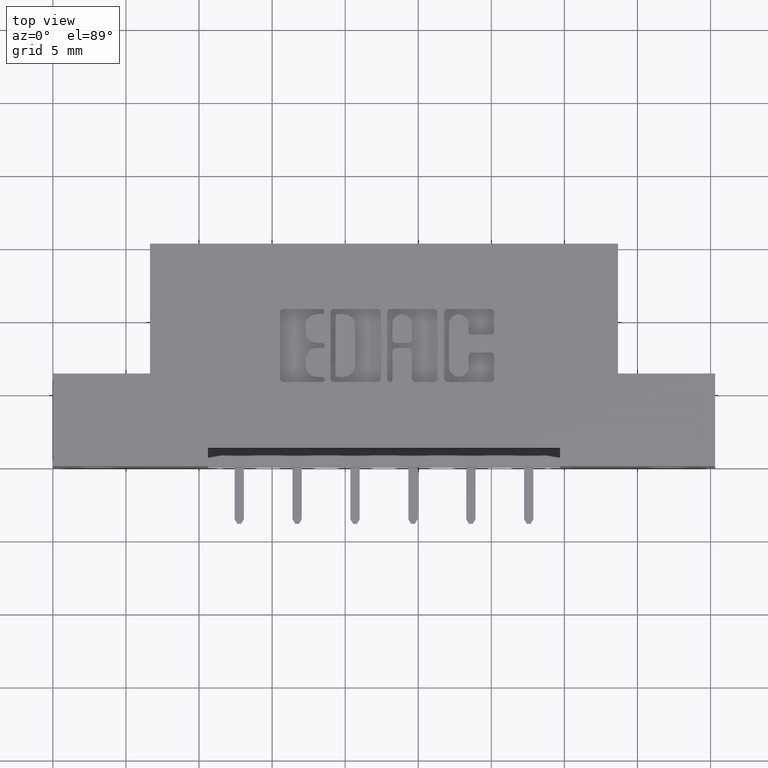
[diagram: clean part render]
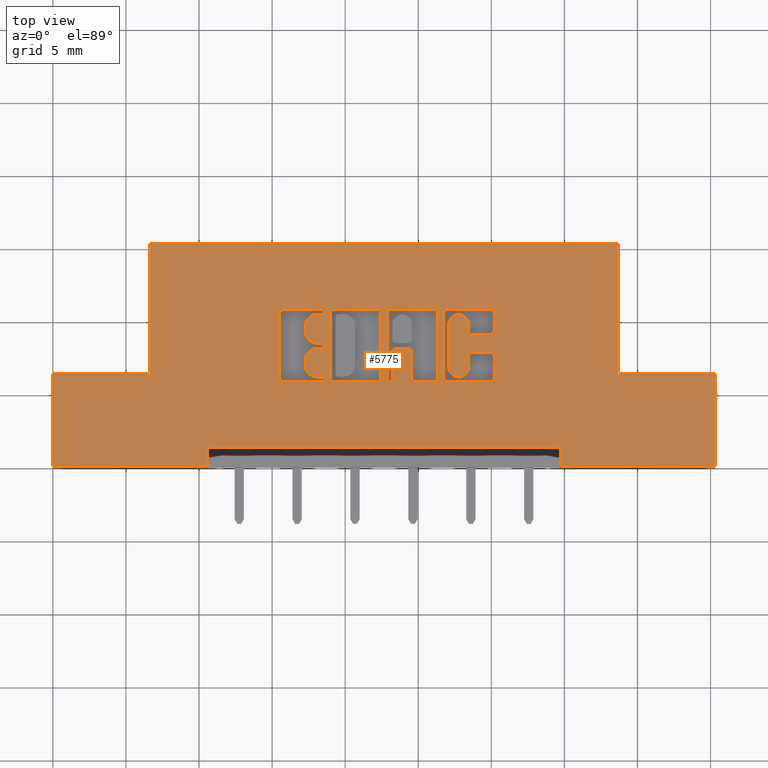
[diagram: same view with one face highlighted and labeled with its STEP entity id]
A machine part, top view. The second image highlights one B-rep face of the part: STEP entity #5775.
In plain terms, the highlighted planar face has unit normal (0, 0, -1).
Its self-contained STEP definition (entity closure, byte-faithful):
#20 = VERTEX_POINT ( 'NONE', #6857 ) ;
#29 = VERTEX_POINT ( 'NONE', #3687 ) ;
#33 = EDGE_CURVE ( 'NONE', #1193, #3816, #1734, .T. ) ;
#35 = CARTESIAN_POINT ( 'NONE',  ( 1.178862961706153234, 0.2965345564089701957, 0.0000000000000000000 ) ) ;
#37 = VERTEX_POINT ( 'NONE', #6255 ) ;
#97 = CIRCLE ( 'NONE', #4847, 0.006870969142662229460 ) ;
#115 = CARTESIAN_POINT ( 'NONE',  ( 1.119478156973165994, 0.3637718973050449445, 0.0000000000000000000 ) ) ;
#119 = AXIS2_PLACEMENT_3D ( 'NONE', #5391, #4222, #899 ) ;
#134 = LINE ( 'NONE', #7302, #653 ) ;
#159 = EDGE_CURVE ( 'NONE', #682, #5470, #1967, .T. ) ;
#162 = VERTEX_POINT ( 'NONE', #3243 ) ;
#163 = CARTESIAN_POINT ( 'NONE',  ( 1.119478156973165994, 0.0000000000000000000, 0.0000000000000000000 ) ) ;
#206 = CARTESIAN_POINT ( 'NONE',  ( 1.129293827176967246, 0.2965345564089693076, 0.0000000000000000000 ) ) ;
#233 = ORIENTED_EDGE ( 'NONE', *, *, #6358, .F. ) ;
#246 = CIRCLE ( 'NONE', #3498, 0.006870969142657995000 ) ;
#265 = CARTESIAN_POINT ( 'NONE',  ( 0.7320045756779998136, 0.4162857328953860070, 0.0000000000000000000 ) ) ;
#281 = DIRECTION ( 'NONE',  ( 0.0000000000000000000, 1.000000000000000000, -0.0000000000000000000 ) ) ;
#288 = EDGE_CURVE ( 'NONE', #7835, #6726, #6532, .T. ) ;
#339 = LINE ( 'NONE', #8043, #3324 ) ;
#350 = CARTESIAN_POINT ( 'NONE',  ( 1.188678631909940275, 0.2366589681657827182, 0.0000000000000000000 ) ) ;
#363 = LINE ( 'NONE', #406, #8225 ) ;
#374 = VERTEX_POINT ( 'NONE', #4659 ) ;
#375 = ORIENTED_EDGE ( 'NONE', *, *, #1810, .F. ) ;
#404 = EDGE_CURVE ( 'NONE', #6148, #6944, #4616, .T. ) ;
#406 = CARTESIAN_POINT ( 'NONE',  ( -2.860952991549581889E-14, 0.2405852362472237216, 0.0000000000000000000 ) ) ;
#410 = EDGE_CURVE ( 'NONE', #4275, #5692, #5449, .T. ) ;
#424 = CARTESIAN_POINT ( 'NONE',  ( 1.036044960240806834, 0.2366589681657806088, 0.0000000000000000000 ) ) ;
#460 = DIRECTION ( 'NONE',  ( 0.0000000000000000000, 0.0000000000000000000, -1.000000000000000000 ) ) ;
#468 = CARTESIAN_POINT ( 'NONE',  ( 1.178862961706168555, 0.4231567020380507804, 0.0000000000000000000 ) ) ;
#494 = CARTESIAN_POINT ( 'NONE',  ( 1.784000000000000474, 0.0000000000000000000, 0.0000000000000000000 ) ) ;
#504 = DIRECTION ( 'NONE',  ( -1.000000000000000000, 0.0000000000000000000, 0.0000000000000000000 ) ) ;
#511 = AXIS2_PLACEMENT_3D ( 'NONE', #7836, #2041, #5970 ) ;
#512 = ORIENTED_EDGE ( 'NONE', *, *, #2056, .F. ) ;
#541 = ORIENTED_EDGE ( 'NONE', *, *, #5886, .T. ) ;
#550 = ORIENTED_EDGE ( 'NONE', *, *, #7308, .F. ) ;
#556 = VERTEX_POINT ( 'NONE', #7456 ) ;
#557 = LINE ( 'NONE', #1751, #7769 ) ;
#562 = EDGE_CURVE ( 'NONE', #7600, #20, #2925, .T. ) ;
#573 = DIRECTION ( 'NONE',  ( 1.000000000000000000, 0.0000000000000000000, 0.0000000000000000000 ) ) ;
#598 = VERTEX_POINT ( 'NONE', #5150 ) ;
#636 = AXIS2_PLACEMENT_3D ( 'NONE', #35, #1399, #3979 ) ;
#639 = CARTESIAN_POINT ( 'NONE',  ( 1.093221239177992299, 0.3831578459575293305, 0.0000000000000000000 ) ) ;
#649 = DIRECTION ( 'NONE',  ( 1.000000000000000000, 0.0000000000000000000, 0.0000000000000000000 ) ) ;
#650 = ORIENTED_EDGE ( 'NONE', *, *, #1180, .F. ) ;
#653 = VECTOR ( 'NONE', #5974, 39.37007874015748143 ) ;
#656 = DIRECTION ( 'NONE',  ( 1.000000000000000000, 0.0000000000000000000, 0.0000000000000000000 ) ) ;
#682 = VERTEX_POINT ( 'NONE', #8350 ) ;
#683 = CARTESIAN_POINT ( 'NONE',  ( 1.119478156973179095, 0.0000000000000000000, 0.0000000000000000000 ) ) ;
#689 = VERTEX_POINT ( 'NONE', #4509 ) ;
#694 = CARTESIAN_POINT ( 'NONE',  ( 0.7479550397591693267, 0.0000000000000000000, 0.0000000000000000000 ) ) ;
#700 = ORIENTED_EDGE ( 'NONE', *, *, #6250, .F. ) ;
#744 = EDGE_CURVE ( 'NONE', #689, #8251, #2866, .T. ) ;
#745 = CARTESIAN_POINT ( 'NONE',  ( -0.0000000000000000000, 0.3539562271012333672, 0.0000000000000000000 ) ) ;
#753 = DIRECTION ( 'NONE',  ( -0.0000000000000000000, -1.000000000000000000, -0.0000000000000000000 ) ) ;
#840 = DIRECTION ( 'NONE',  ( -0.0000000000000000000, 0.0000000000000000000, 1.000000000000000000 ) ) ;
#881 = CARTESIAN_POINT ( 'NONE',  ( 1.119478156973179095, 0.2965345564089684194, 0.0000000000000000000 ) ) ;
#883 = CARTESIAN_POINT ( 'NONE',  ( 0.7577707099630103249, 0.4231567020380507804, 0.0000000000000000000 ) ) ;
#889 = ORIENTED_EDGE ( 'NONE', *, *, #6785, .F. ) ;
#899 = DIRECTION ( 'NONE',  ( 1.000000000000000000, 0.0000000000000000000, 0.0000000000000000000 ) ) ;
#902 = CIRCLE ( 'NONE', #5103, 0.03141014465215623969 ) ;
#912 = DIRECTION ( 'NONE',  ( -0.0000000000000000000, 0.0000000000000000000, 1.000000000000000000 ) ) ;
#915 = CIRCLE ( 'NONE', #6735, 0.009815670203796511215 ) ;
#922 = LINE ( 'NONE', #745, #3111 ) ;
#923 = ORIENTED_EDGE ( 'NONE', *, *, #4706, .T. ) ;
#928 = VERTEX_POINT ( 'NONE', #7593 ) ;
#930 = EDGE_CURVE ( 'NONE', #928, #3530, #8112, .T. ) ;
#941 = VERTEX_POINT ( 'NONE', #5025 ) ;
#950 = AXIS2_PLACEMENT_3D ( 'NONE', #4778, #2706, #7860 ) ;
#984 = EDGE_CURVE ( 'NONE', #3012, #1217, #6281, .T. ) ;
#990 = CARTESIAN_POINT ( 'NONE',  ( 1.063038053301299524, 0.4133410318342098377, 0.0000000000000000000 ) ) ;
#1000 = AXIS2_PLACEMENT_3D ( 'NONE', #206, #840, #8085 ) ;
#1028 = CARTESIAN_POINT ( 'NONE',  ( 1.784000000000000474, 0.2500000000000000000, 0.0000000000000000000 ) ) ;
#1043 = VECTOR ( 'NONE', #4056, 39.37007874015748143 ) ;
#1045 = VERTEX_POINT ( 'NONE', #6533 ) ;
#1054 = VECTOR ( 'NONE', #6858, 39.37007874015748143 ) ;
#1057 = CIRCLE ( 'NONE', #511, 0.006870969142648433205 ) ;
#1058 = CARTESIAN_POINT ( 'NONE',  ( 0.8735956183678962317, 0.4231567020380507804, 0.0000000000000000000 ) ) ;
#1060 = DIRECTION ( 'NONE',  ( -1.000000000000000000, -3.530861605407645268E-14, 0.0000000000000000000 ) ) ;
#1085 = ORIENTED_EDGE ( 'NONE', *, *, #5941, .F. ) ;
#1089 = CARTESIAN_POINT ( 'NONE',  ( -0.0000000000000000000, 0.2268432979619829370, 0.0000000000000000000 ) ) ;
#1090 = VECTOR ( 'NONE', #7393, 39.37007874015748143 ) ;
#1167 = CARTESIAN_POINT ( 'NONE',  ( 1.129293827176977461, 0.3637718973050449445, 0.0000000000000000000 ) ) ;
#1169 = CARTESIAN_POINT ( 'NONE',  ( 0.0000000000000000000, 0.5999999999999999778, 0.0000000000000000000 ) ) ;
#1180 = EDGE_CURVE ( 'NONE', #556, #6256, #3489, .T. ) ;
#1185 = ORIENTED_EDGE ( 'NONE', *, *, #5076, .F. ) ;
#1189 = EDGE_CURVE ( 'NONE', #4565, #7220, #4282, .T. ) ;
#1193 = VERTEX_POINT ( 'NONE', #4717 ) ;
#1201 = CARTESIAN_POINT ( 'NONE',  ( 1.366500000000000936, 0.0000000000000000000, 0.0000000000000000000 ) ) ;
#1202 = ORIENTED_EDGE ( 'NONE', *, *, #5634, .F. ) ;
#1217 = VERTEX_POINT ( 'NONE', #2257 ) ;
#1218 = CARTESIAN_POINT ( 'NONE',  ( 0.7116370600050841988, 0.3632811137948581126, 0.0000000000000000000 ) ) ;
#1225 = ORIENTED_EDGE ( 'NONE', *, *, #3038, .F. ) ;
#1233 = VECTOR ( 'NONE', #6820, 39.37007874015748143 ) ;
#1254 = DIRECTION ( 'NONE',  ( -0.0000000000000000000, 0.0000000000000000000, 1.000000000000000000 ) ) ;
#1258 = CARTESIAN_POINT ( 'NONE',  ( 1.053222383097458748, 0.2366589681657896849, 0.0000000000000000000 ) ) ;
#1266 = EDGE_CURVE ( 'NONE', #7711, #941, #6387, .T. ) ;
#1267 = CARTESIAN_POINT ( 'NONE',  ( 0.7116370600050841988, 0.3318709691426836028, 0.0000000000000000000 ) ) ;
#1268 = DIRECTION ( 'NONE',  ( -0.0000000000000000000, 0.0000000000000000000, 1.000000000000000000 ) ) ;
#1269 = ORIENTED_EDGE ( 'NONE', *, *, #562, .F. ) ;
#1280 = EDGE_CURVE ( 'NONE', #5428, #928, #2746, .T. ) ;
#1294 = EDGE_CURVE ( 'NONE', #3619, #5426, #5688, .T. ) ;
#1319 = DIRECTION ( 'NONE',  ( -0.0000000000000000000, 0.0000000000000000000, 1.000000000000000000 ) ) ;
#1339 = ORIENTED_EDGE ( 'NONE', *, *, #8317, .F. ) ;
#1343 = CARTESIAN_POINT ( 'NONE',  ( 1.188678631909972250, 0.0000000000000000000, 0.0000000000000000000 ) ) ;
#1369 = CARTESIAN_POINT ( 'NONE',  ( 1.188678631909940275, 0.2965345564089701957, 0.0000000000000000000 ) ) ;
#1385 = CARTESIAN_POINT ( 'NONE',  ( 0.6208421106199187856, 0.2268432979619847134, 0.0000000000000000000 ) ) ;
#1399 = DIRECTION ( 'NONE',  ( -0.0000000000000000000, 0.0000000000000000000, 1.000000000000000000 ) ) ;
#1408 = ORIENTED_EDGE ( 'NONE', *, *, #1189, .F. ) ;
#1428 = DIRECTION ( 'NONE',  ( -1.000000000000000000, -1.189163988687022540E-13, 0.0000000000000000000 ) ) ;
#1452 = ORIENTED_EDGE ( 'NONE', *, *, #6409, .T. ) ;
#1459 = DIRECTION ( 'NONE',  ( -1.000000000000000000, -0.0000000000000000000, -0.0000000000000000000 ) ) ;
#1482 = DIRECTION ( 'NONE',  ( -0.0000000000000000000, 0.0000000000000000000, 1.000000000000000000 ) ) ;
#1491 = DIRECTION ( 'NONE',  ( 1.000000000000000000, 0.0000000000000000000, 0.0000000000000000000 ) ) ;
#1499 = DIRECTION ( 'NONE',  ( 0.0000000000000000000, -1.000000000000000000, 0.0000000000000000000 ) ) ;
#1507 = VERTEX_POINT ( 'NONE', #8297 ) ;
#1511 = ORIENTED_EDGE ( 'NONE', *, *, #5691, .F. ) ;
#1559 = DIRECTION ( 'NONE',  ( -0.0000000000000000000, 0.0000000000000000000, 1.000000000000000000 ) ) ;
#1577 = CIRCLE ( 'NONE', #6706, 0.03141014465221592805 ) ;
#1586 = CARTESIAN_POINT ( 'NONE',  ( 0.4174999999999999822, 0.05000000000000000278, 0.0000000000000000000 ) ) ;
#1589 = CIRCLE ( 'NONE', #7115, 0.009815670203840083999 ) ;
#1617 = CARTESIAN_POINT ( 'NONE',  ( 0.8834112885716690622, 0.4133410318342098377, 0.0000000000000000000 ) ) ;
#1624 = LINE ( 'NONE', #4125, #3349 ) ;
#1647 = CARTESIAN_POINT ( 'NONE',  ( 0.0000000000000000000, 0.5999999999999999778, 0.0000000000000000000 ) ) ;
#1652 = EDGE_CURVE ( 'NONE', #1045, #6148, #3396, .T. ) ;
#1657 = DIRECTION ( 'NONE',  ( 1.000000000000000000, 0.0000000000000000000, 0.0000000000000000000 ) ) ;
#1675 = EDGE_CURVE ( 'NONE', #3654, #5931, #5340, .T. ) ;
#1702 = CARTESIAN_POINT ( 'NONE',  ( 0.7251336064154144667, 0.2268432979619854628, 0.0000000000000000000 ) ) ;
#1709 = DIRECTION ( 'NONE',  ( 1.000000000000000000, -0.0000000000000000000, 6.517790373664756167E-16 ) ) ;
#1715 = EDGE_CURVE ( 'NONE', #1986, #29, #6950, .T. ) ;
#1719 = VERTEX_POINT ( 'NONE', #2413 ) ;
#1730 = DIRECTION ( 'NONE',  ( -0.0000000000000000000, 1.000000000000000000, -0.0000000000000000000 ) ) ;
#1734 = LINE ( 'NONE', #4324, #4890 ) ;
#1751 = CARTESIAN_POINT ( 'NONE',  ( -1.634053534412015180E-15, 0.2268432979619802448, 0.0000000000000000000 ) ) ;
#1770 = ORIENTED_EDGE ( 'NONE', *, *, #5392, .T. ) ;
#1775 = CARTESIAN_POINT ( 'NONE',  ( 0.7251336064154144667, 0.2405852362473099582, 0.0000000000000000000 ) ) ;
#1779 = VERTEX_POINT ( 'NONE', #468 ) ;
#1784 = ORIENTED_EDGE ( 'NONE', *, *, #3190, .F. ) ;
#1805 = LINE ( 'NONE', #1169, #6451 ) ;
#1810 = EDGE_CURVE ( 'NONE', #6726, #4565, #7099, .T. ) ;
#1829 = ORIENTED_EDGE ( 'NONE', *, *, #7215, .F. ) ;
#1837 = CIRCLE ( 'NONE', #4140, 0.009815670203806754757 ) ;
#1845 = CIRCLE ( 'NONE', #6851, 0.02625691779517367111 ) ;
#1853 = EDGE_CURVE ( 'NONE', #598, #7265, #6091, .T. ) ;
#1866 = CARTESIAN_POINT ( 'NONE',  ( 0.7577707099630103249, 0.4133410318342098377, 0.0000000000000000000 ) ) ;
#1867 = VERTEX_POINT ( 'NONE', #6464 ) ;
#1891 = CARTESIAN_POINT ( 'NONE',  ( 0.6802269153529095780, 0.3780046191005195233, 0.0000000000000000000 ) ) ;
#1898 = ORIENTED_EDGE ( 'NONE', *, *, #930, .F. ) ;
#1899 = ORIENTED_EDGE ( 'NONE', *, *, #2258, .F. ) ;
#1963 = CARTESIAN_POINT ( 'NONE',  ( 0.7251336064153889316, 0.3181290308573565540, 0.0000000000000000000 ) ) ;
#1967 = LINE ( 'NONE', #1343, #5070 ) ;
#1968 = DIRECTION ( 'NONE',  ( 1.000000000000000000, 0.0000000000000000000, 0.0000000000000000000 ) ) ;
#1971 = DIRECTION ( 'NONE',  ( 0.0000000000000000000, -1.000000000000000000, 0.0000000000000000000 ) ) ;
#1977 = ORIENTED_EDGE ( 'NONE', *, *, #404, .T. ) ;
#1986 = VERTEX_POINT ( 'NONE', #7319 ) ;
#1998 = DIRECTION ( 'NONE',  ( -0.0000000000000000000, -1.000000000000000000, -0.0000000000000000000 ) ) ;
#2030 = VERTEX_POINT ( 'NONE', #7816 ) ;
#2031 = CARTESIAN_POINT ( 'NONE',  ( 0.6110264404161155349, 0.4133410318342098377, 0.0000000000000000000 ) ) ;
#2041 = DIRECTION ( 'NONE',  ( -0.0000000000000000000, 0.0000000000000000000, 1.000000000000000000 ) ) ;
#2055 = VERTEX_POINT ( 'NONE', #4776 ) ;
#2056 = EDGE_CURVE ( 'NONE', #5977, #1507, #3931, .T. ) ;
#2075 = CARTESIAN_POINT ( 'NONE',  ( 0.7251336065353356508, 0.2337142671046476827, 0.0000000000000000000 ) ) ;
#2088 = EDGE_CURVE ( 'NONE', #20, #7834, #2720, .T. ) ;
#2091 = DIRECTION ( 'NONE',  ( 0.0000000000000000000, 1.000000000000000000, -0.0000000000000000000 ) ) ;
#2100 = VECTOR ( 'NONE', #7746, 39.37007874015748143 ) ;
#2120 = VERTEX_POINT ( 'NONE', #4146 ) ;
#2123 = CARTESIAN_POINT ( 'NONE',  ( 0.7251336065353356508, 0.2337142671046476827, 0.0000000000000000000 ) ) ;
#2145 = DIRECTION ( 'NONE',  ( 1.000000000000000000, 0.0000000000000000000, 0.0000000000000000000 ) ) ;
#2148 = AXIS2_PLACEMENT_3D ( 'NONE', #7045, #3863, #4716 ) ;
#2155 = VERTEX_POINT ( 'NONE', #5619 ) ;
#2169 = EDGE_LOOP ( 'NONE', ( #2353, #7696, #2690, #6168, #6656, #4838, #2988, #2454, #4044, #6292, #4777, #6066, #4411, #1269, #7273, #1898, #4482, #2239, #5939, #5382 ) ) ;
#2197 = EDGE_CURVE ( 'NONE', #2030, #6349, #6194, .T. ) ;
#2212 = VERTEX_POINT ( 'NONE', #4866 ) ;
#2223 = AXIS2_PLACEMENT_3D ( 'NONE', #1866, #1268, #6230 ) ;
#2230 = VERTEX_POINT ( 'NONE', #5033 ) ;
#2239 = ORIENTED_EDGE ( 'NONE', *, *, #2851, .F. ) ;
#2247 = VERTEX_POINT ( 'NONE', #494 ) ;
#2257 = CARTESIAN_POINT ( 'NONE',  ( 0.8735956183678622589, 0.2268432979619829370, 0.0000000000000000000 ) ) ;
#2258 = EDGE_CURVE ( 'NONE', #2030, #2230, #5665, .T. ) ;
#2283 = LINE ( 'NONE', #4239, #6459 ) ;
#2328 = DIRECTION ( 'NONE',  ( 0.0000000000000000000, 1.000000000000000000, -0.0000000000000000000 ) ) ;
#2338 = LINE ( 'NONE', #6828, #7651 ) ;
#2339 = ORIENTED_EDGE ( 'NONE', *, *, #4926, .T. ) ;
#2345 = AXIS2_PLACEMENT_3D ( 'NONE', #4380, #6960, #5016 ) ;
#2353 = ORIENTED_EDGE ( 'NONE', *, *, #4330, .F. ) ;
#2361 = FACE_BOUND ( 'NONE', #6939, .T. ) ;
#2381 = CARTESIAN_POINT ( 'NONE',  ( 1.784000000000000474, 0.2500000000000000000, 0.0000000000000000000 ) ) ;
#2394 = VECTOR ( 'NONE', #4262, 39.37007874015748143 ) ;
#2413 = CARTESIAN_POINT ( 'NONE',  ( 1.522500000000001075, 0.5999999999999999778, -1.704402182713329582E-16 ) ) ;
#2429 = AXIS2_PLACEMENT_3D ( 'NONE', #4099, #2698, #8030 ) ;
#2454 = ORIENTED_EDGE ( 'NONE', *, *, #7634, .F. ) ;
#2524 = AXIS2_PLACEMENT_3D ( 'NONE', #1167, #7678, #649 ) ;
#2526 = DIRECTION ( 'NONE',  ( -0.0000000000000000000, -1.000000000000000000, -0.0000000000000000000 ) ) ;
#2579 = EDGE_CURVE ( 'NONE', #1867, #7152, #1845, .T. ) ;
#2583 = CARTESIAN_POINT ( 'NONE',  ( 0.0000000000000000000, 0.2500000000000000000, 0.0000000000000000000 ) ) ;
#2614 = CARTESIAN_POINT ( 'NONE',  ( 1.188678631909972250, 0.4133410318341945722, 0.0000000000000000000 ) ) ;
#2632 = DIRECTION ( 'NONE',  ( -0.0000000000000000000, 0.0000000000000000000, 1.000000000000000000 ) ) ;
#2659 = CIRCLE ( 'NONE', #3753, 0.009815670203841039831 ) ;
#2690 = ORIENTED_EDGE ( 'NONE', *, *, #5059, .F. ) ;
#2694 = VECTOR ( 'NONE', #1060, 39.37007874015748143 ) ;
#2698 = DIRECTION ( 'NONE',  ( -0.0000000000000000000, 0.0000000000000000000, 1.000000000000000000 ) ) ;
#2701 = CARTESIAN_POINT ( 'NONE',  ( 0.0000000000000000000, 0.5999999999999999778, 0.0000000000000000000 ) ) ;
#2706 = DIRECTION ( 'NONE',  ( -0.0000000000000000000, 0.0000000000000000000, 1.000000000000000000 ) ) ;
#2709 = ORIENTED_EDGE ( 'NONE', *, *, #4770, .F. ) ;
#2713 = DIRECTION ( 'NONE',  ( -0.0000000000000000000, 0.0000000000000000000, 1.000000000000000000 ) ) ;
#2716 = CARTESIAN_POINT ( 'NONE',  ( 0.6802269153529095780, 0.0000000000000000000, 0.0000000000000000000 ) ) ;
#2720 = CIRCLE ( 'NONE', #7458, 0.009815670203806345362 ) ;
#2746 = CIRCLE ( 'NONE', #7733, 0.009815670203840767480 ) ;
#2759 = DIRECTION ( 'NONE',  ( 1.000000000000000000, 0.0000000000000000000, 0.0000000000000000000 ) ) ;
#2810 = CARTESIAN_POINT ( 'NONE',  ( 0.9668444853039848130, 0.0000000000000000000, 0.0000000000000000000 ) ) ;
#2845 = CARTESIAN_POINT ( 'NONE',  ( 0.9241463199174503318, 0.3083133606535453097, 0.0000000000000000000 ) ) ;
#2851 = EDGE_CURVE ( 'NONE', #1779, #5428, #2338, .T. ) ;
#2866 = LINE ( 'NONE', #4137, #1090 ) ;
#2896 = VECTOR ( 'NONE', #753, 39.37007874015748143 ) ;
#2914 = DIRECTION ( 'NONE',  ( -0.0000000000000000000, 0.0000000000000000000, 1.000000000000000000 ) ) ;
#2925 = LINE ( 'NONE', #6177, #5357 ) ;
#2944 = VERTEX_POINT ( 'NONE', #5469 ) ;
#2952 = CARTESIAN_POINT ( 'NONE',  ( 1.178862961706132140, 0.4133410318342106704, 0.0000000000000000000 ) ) ;
#2961 = DIRECTION ( 'NONE',  ( -0.0000000000000000000, 0.0000000000000000000, 1.000000000000000000 ) ) ;
#2988 = ORIENTED_EDGE ( 'NONE', *, *, #1266, .T. ) ;
#3005 = CARTESIAN_POINT ( 'NONE',  ( 0.4174999999999999822, 0.05000000000000000278, 0.0000000000000000000 ) ) ;
#3012 = VERTEX_POINT ( 'NONE', #3698 ) ;
#3038 = EDGE_CURVE ( 'NONE', #8137, #8239, #7620, .T. ) ;
#3052 = ORIENTED_EDGE ( 'NONE', *, *, #984, .F. ) ;
#3067 = DIRECTION ( 'NONE',  ( -0.0000000000000000000, 0.0000000000000000000, 1.000000000000000000 ) ) ;
#3071 = VECTOR ( 'NONE', #6970, 39.37007874015748143 ) ;
#3072 = VERTEX_POINT ( 'NONE', #5637 ) ;
#3074 = CARTESIAN_POINT ( 'NONE',  ( 0.0000000000000000000, 0.2500000000000000000, 0.0000000000000000000 ) ) ;
#3086 = VERTEX_POINT ( 'NONE', #6956 ) ;
#3096 = ORIENTED_EDGE ( 'NONE', *, *, #7697, .F. ) ;
#3106 = CIRCLE ( 'NONE', #2148, 0.006870969142663458512 ) ;
#3111 = VECTOR ( 'NONE', #6081, 39.37007874015748143 ) ;
#3131 = VERTEX_POINT ( 'NONE', #2583 ) ;
#3132 = ORIENTED_EDGE ( 'NONE', *, *, #6354, .F. ) ;
#3138 = DIRECTION ( 'NONE',  ( 1.000000000000000000, 7.203446383881654569E-15, 0.0000000000000000000 ) ) ;
#3167 = CARTESIAN_POINT ( 'NONE',  ( 0.9074596805709871372, 0.2337142671046476827, 0.0000000000000000000 ) ) ;
#3180 = VERTEX_POINT ( 'NONE', #3852 ) ;
#3190 = EDGE_CURVE ( 'NONE', #5426, #2247, #5335, .T. ) ;
#3243 = CARTESIAN_POINT ( 'NONE',  ( 1.036044960240806834, 0.4133410318342007339, 0.0000000000000000000 ) ) ;
#3244 = CARTESIAN_POINT ( 'NONE',  ( 1.066964321382818603, 0.3831578459575293305, 0.0000000000000000000 ) ) ;
#3281 = AXIS2_PLACEMENT_3D ( 'NONE', #3389, #6689, #1491 ) ;
#3307 = EDGE_CURVE ( 'NONE', #3816, #6867, #5322, .T. ) ;
#3324 = VECTOR ( 'NONE', #2328, 39.37007874015748143 ) ;
#3349 = VECTOR ( 'NONE', #6827, 39.37007874015748143 ) ;
#3353 = CIRCLE ( 'NONE', #2429, 0.009815670203795690690 ) ;
#3360 = CARTESIAN_POINT ( 'NONE',  ( 1.063038053301265329, 0.2268432979619829370, 0.0000000000000000000 ) ) ;
#3361 = CARTESIAN_POINT ( 'NONE',  ( 1.366500000000000936, 0.05000000000000000278, 0.0000000000000000000 ) ) ;
#3382 = CARTESIAN_POINT ( 'NONE',  ( 0.7116370600050841988, 0.3181290308573565540, 0.0000000000000000000 ) ) ;
#3389 = CARTESIAN_POINT ( 'NONE',  ( 0.6208421106199381034, 0.4133410318342098377, 0.0000000000000000000 ) ) ;
#3396 = CIRCLE ( 'NONE', #5427, 0.009815670203803203778 ) ;
#3406 = EDGE_CURVE ( 'NONE', #3086, #1507, #5675, .T. ) ;
#3425 = VECTOR ( 'NONE', #1709, 39.37007874015748143 ) ;
#3468 = ORIENTED_EDGE ( 'NONE', *, *, #6286, .F. ) ;
#3484 = VERTEX_POINT ( 'NONE', #424 ) ;
#3489 = LINE ( 'NONE', #7255, #5752 ) ;
#3498 = AXIS2_PLACEMENT_3D ( 'NONE', #3167, #7760, #1968 ) ;
#3502 = DIRECTION ( 'NONE',  ( 1.000000000000000000, 0.0000000000000000000, 0.0000000000000000000 ) ) ;
#3513 = CARTESIAN_POINT ( 'NONE',  ( 0.7320045756779978152, 0.2337142671046476827, 0.0000000000000000000 ) ) ;
#3530 = VERTEX_POINT ( 'NONE', #1258 ) ;
#3546 = LINE ( 'NONE', #3677, #7531 ) ;
#3550 = CARTESIAN_POINT ( 'NONE',  ( 1.178862961706134360, 0.2366589681657896849, 0.0000000000000000000 ) ) ;
#3556 = ORIENTED_EDGE ( 'NONE', *, *, #4019, .T. ) ;
#3582 = LINE ( 'NONE', #6149, #2394 ) ;
#3619 = VERTEX_POINT ( 'NONE', #5952 ) ;
#3630 = VERTEX_POINT ( 'NONE', #7188 ) ;
#3649 = LINE ( 'NONE', #2810, #5932 ) ;
#3654 = VERTEX_POINT ( 'NONE', #4644 ) ;
#3662 = CARTESIAN_POINT ( 'NONE',  ( 0.9005887114283310790, 0.4133410318342098377, 0.0000000000000000000 ) ) ;
#3669 = LINE ( 'NONE', #4937, #4972 ) ;
#3674 = DIRECTION ( 'NONE',  ( -0.0000000000000000000, 0.0000000000000000000, 1.000000000000000000 ) ) ;
#3677 = CARTESIAN_POINT ( 'NONE',  ( 1.188678631909940275, 0.0000000000000000000, 0.0000000000000000000 ) ) ;
#3687 = CARTESIAN_POINT ( 'NONE',  ( 0.4174999999999998712, 0.0000000000000000000, 0.0000000000000000000 ) ) ;
#3698 = CARTESIAN_POINT ( 'NONE',  ( 0.7577707099629761300, 0.2268432979619829370, 0.0000000000000000000 ) ) ;
#3704 = VECTOR ( 'NONE', #3983, 39.37007874015748143 ) ;
#3745 = CARTESIAN_POINT ( 'NONE',  ( 0.7251336065353101157, 0.3318709691426836028, 0.0000000000000000000 ) ) ;
#3753 = AXIS2_PLACEMENT_3D ( 'NONE', #4066, #5995, #4149 ) ;
#3755 = AXIS2_PLACEMENT_3D ( 'NONE', #7918, #4533, #2759 ) ;
#3764 = LINE ( 'NONE', #8204, #4701 ) ;
#3787 = EDGE_CURVE ( 'NONE', #3871, #6772, #6280, .T. ) ;
#3809 = CARTESIAN_POINT ( 'NONE',  ( 0.6110264404161155349, 0.0000000000000000000, 0.0000000000000000000 ) ) ;
#3816 = VERTEX_POINT ( 'NONE', #8033 ) ;
#3852 = CARTESIAN_POINT ( 'NONE',  ( 0.7479550397591693267, 0.2366589681657896849, 0.0000000000000000000 ) ) ;
#3854 = CARTESIAN_POINT ( 'NONE',  ( 0.7116370600051254991, 0.3780046191005195233, 0.0000000000000000000 ) ) ;
#3863 = DIRECTION ( 'NONE',  ( -0.0000000000000000000, 0.0000000000000000000, 1.000000000000000000 ) ) ;
#3871 = VERTEX_POINT ( 'NONE', #3745 ) ;
#3882 = DIRECTION ( 'NONE',  ( 1.000000000000000000, 0.0000000000000000000, 0.0000000000000000000 ) ) ;
#3893 = CIRCLE ( 'NONE', #4573, 0.009815670203806754757 ) ;
#3929 = ORIENTED_EDGE ( 'NONE', *, *, #3954, .F. ) ;
#3931 = CIRCLE ( 'NONE', #6495, 0.009815670203803340821 ) ;
#3954 = EDGE_CURVE ( 'NONE', #4552, #5242, #3106, .T. ) ;
#3979 = DIRECTION ( 'NONE',  ( 1.000000000000000000, 0.0000000000000000000, 0.0000000000000000000 ) ) ;
#3983 = DIRECTION ( 'NONE',  ( 0.0000000000000000000, -1.000000000000000000, 0.0000000000000000000 ) ) ;
#3985 = DIRECTION ( 'NONE',  ( -0.0000000000000000000, 0.0000000000000000000, 1.000000000000000000 ) ) ;
#3996 = VECTOR ( 'NONE', #1499, 39.37007874015748143 ) ;
#4001 = VECTOR ( 'NONE', #5922, 39.37007874015748143 ) ;
#4002 = CARTESIAN_POINT ( 'NONE',  ( -0.0000000000000000000, 0.4231567020380063160, 0.0000000000000000000 ) ) ;
#4019 = EDGE_CURVE ( 'NONE', #556, #5436, #5308, .T. ) ;
#4026 = EDGE_CURVE ( 'NONE', #7054, #8137, #134, .T. ) ;
#4030 = EDGE_CURVE ( 'NONE', #2155, #6517, #5398, .T. ) ;
#4040 = CARTESIAN_POINT ( 'NONE',  ( 0.7251336065353513050, 0.4162857328953860070, 0.0000000000000000000 ) ) ;
#4044 = ORIENTED_EDGE ( 'NONE', *, *, #3307, .F. ) ;
#4056 = DIRECTION ( 'NONE',  ( 0.0000000000000000000, -1.000000000000000000, 0.0000000000000000000 ) ) ;
#4066 = CARTESIAN_POINT ( 'NONE',  ( 0.8735956183678280640, 0.4133410318342097267, 0.0000000000000000000 ) ) ;
#4068 = DIRECTION ( 'NONE',  ( 1.000000000000000000, 0.0000000000000000000, 0.0000000000000000000 ) ) ;
#4079 = ORIENTED_EDGE ( 'NONE', *, *, #7345, .F. ) ;
#4082 = VERTEX_POINT ( 'NONE', #1369 ) ;
#4083 = LINE ( 'NONE', #683, #3996 ) ;
#4099 = CARTESIAN_POINT ( 'NONE',  ( 1.026229290037011799, 0.4133410318342101153, 0.0000000000000000000 ) ) ;
#4125 = CARTESIAN_POINT ( 'NONE',  ( 1.522500000000001075, 0.2500000000000000000, -1.704402182713329582E-16 ) ) ;
#4136 = ORIENTED_EDGE ( 'NONE', *, *, #288, .F. ) ;
#4137 = CARTESIAN_POINT ( 'NONE',  ( 0.8834112885716690622, 0.0000000000000000000, 0.0000000000000000000 ) ) ;
#4140 = AXIS2_PLACEMENT_3D ( 'NONE', #7584, #8218, #7072 ) ;
#4146 = CARTESIAN_POINT ( 'NONE',  ( 0.2615000000000001212, 0.5999999999999999778, 0.0000000000000000000 ) ) ;
#4149 = DIRECTION ( 'NONE',  ( 1.000000000000000000, 0.0000000000000000000, 0.0000000000000000000 ) ) ;
#4195 = CARTESIAN_POINT ( 'NONE',  ( 0.7116370600051097339, 0.2719953808994901023, 0.0000000000000000000 ) ) ;
#4201 = CARTESIAN_POINT ( 'NONE',  ( 0.7251336065353101157, 0.3250000000000201061, 0.0000000000000000000 ) ) ;
#4222 = DIRECTION ( 'NONE',  ( -0.0000000000000000000, 0.0000000000000000000, 1.000000000000000000 ) ) ;
#4239 = CARTESIAN_POINT ( 'NONE',  ( 0.2615000000000001212, 0.2500000000000000000, 0.0000000000000000000 ) ) ;
#4262 = DIRECTION ( 'NONE',  ( 0.0000000000000000000, -1.000000000000000000, 0.0000000000000000000 ) ) ;
#4266 = CARTESIAN_POINT ( 'NONE',  ( 0.7577707099629761300, 0.2366589681657896849, 0.0000000000000000000 ) ) ;
#4275 = VERTEX_POINT ( 'NONE', #3513 ) ;
#4282 = CIRCLE ( 'NONE', #5353, 0.009815670203805798924 ) ;
#4283 = EDGE_CURVE ( 'NONE', #37, #3630, #922, .T. ) ;
#4284 = LINE ( 'NONE', #6860, #2694 ) ;
#4296 = DIRECTION ( 'NONE',  ( -1.000000000000000000, 0.0000000000000000000, 0.0000000000000000000 ) ) ;
#4306 = VERTEX_POINT ( 'NONE', #115 ) ;
#4318 = AXIS2_PLACEMENT_3D ( 'NONE', #1647, #460, #8200 ) ;
#4324 = CARTESIAN_POINT ( 'NONE',  ( 0.0000000000000000000, 0.3063502266127572926, 0.0000000000000000000 ) ) ;
#4326 = VECTOR ( 'NONE', #1998, 39.37007874015748143 ) ;
#4330 = EDGE_CURVE ( 'NONE', #3630, #682, #4334, .T. ) ;
#4334 = CIRCLE ( 'NONE', #950, 0.009815670203804980135 ) ;
#4352 = ORIENTED_EDGE ( 'NONE', *, *, #3406, .T. ) ;
#4370 = VERTEX_POINT ( 'NONE', #3382 ) ;
#4380 = CARTESIAN_POINT ( 'NONE',  ( 1.093221239177998960, 0.2668421540424527616, 0.0000000000000000000 ) ) ;
#4400 = EDGE_CURVE ( 'NONE', #8251, #7054, #2659, .T. ) ;
#4401 = ORIENTED_EDGE ( 'NONE', *, *, #7039, .F. ) ;
#4402 = FACE_OUTER_BOUND ( 'NONE', #6393, .T. ) ;
#4411 = ORIENTED_EDGE ( 'NONE', *, *, #2088, .F. ) ;
#4437 = VECTOR ( 'NONE', #7948, 39.37007874015748143 ) ;
#4438 = AXIS2_PLACEMENT_3D ( 'NONE', #4195, #2914, #8076 ) ;
#4475 = VECTOR ( 'NONE', #1971, 39.37007874015748143 ) ;
#4476 = VECTOR ( 'NONE', #5592, 39.37007874015748143 ) ;
#4481 = DIRECTION ( 'NONE',  ( -0.0000000000000000000, 0.0000000000000000000, 1.000000000000000000 ) ) ;
#4482 = ORIENTED_EDGE ( 'NONE', *, *, #1280, .F. ) ;
#4505 = LINE ( 'NONE', #7090, #3071 ) ;
#4509 = CARTESIAN_POINT ( 'NONE',  ( 0.8834112885716690622, 0.2366589681657896849, 0.0000000000000000000 ) ) ;
#4519 = ORIENTED_EDGE ( 'NONE', *, *, #5272, .F. ) ;
#4533 = DIRECTION ( 'NONE',  ( -0.0000000000000000000, 0.0000000000000000000, 1.000000000000000000 ) ) ;
#4543 = ORIENTED_EDGE ( 'NONE', *, *, #410, .F. ) ;
#4552 = VERTEX_POINT ( 'NONE', #1963 ) ;
#4565 = VERTEX_POINT ( 'NONE', #5151 ) ;
#4573 = AXIS2_PLACEMENT_3D ( 'NONE', #4266, #3674, #2145 ) ;
#4616 = LINE ( 'NONE', #7202, #3704 ) ;
#4618 = DIRECTION ( 'NONE',  ( 1.000000000000000000, 0.0000000000000000000, 0.0000000000000000000 ) ) ;
#4644 = CARTESIAN_POINT ( 'NONE',  ( 0.6802269153529095780, 0.3632811137948581126, 0.0000000000000000000 ) ) ;
#4659 = CARTESIAN_POINT ( 'NONE',  ( 0.7251336065353513050, 0.4231567020380324617, 0.0000000000000000000 ) ) ;
#4678 = ORIENTED_EDGE ( 'NONE', *, *, #4400, .F. ) ;
#4680 = DIRECTION ( 'NONE',  ( 1.000000000000000000, 0.0000000000000000000, 0.0000000000000000000 ) ) ;
#4701 = VECTOR ( 'NONE', #8125, 39.37007874015748143 ) ;
#4706 = EDGE_CURVE ( 'NONE', #2055, #5683, #5984, .T. ) ;
#4716 = DIRECTION ( 'NONE',  ( 1.000000000000000000, 0.0000000000000000000, 0.0000000000000000000 ) ) ;
#4717 = CARTESIAN_POINT ( 'NONE',  ( 1.178862961706156787, 0.3063502266127572926, 0.0000000000000000000 ) ) ;
#4770 = EDGE_CURVE ( 'NONE', #8239, #3180, #6027, .T. ) ;
#4776 = CARTESIAN_POINT ( 'NONE',  ( 0.9104043816321275573, 0.4231567020380063160, 0.0000000000000000000 ) ) ;
#4777 = ORIENTED_EDGE ( 'NONE', *, *, #6837, .F. ) ;
#4778 = CARTESIAN_POINT ( 'NONE',  ( 1.178862961706167223, 0.3637718973050383942, 0.0000000000000000000 ) ) ;
#4838 = ORIENTED_EDGE ( 'NONE', *, *, #8223, .F. ) ;
#4847 = AXIS2_PLACEMENT_3D ( 'NONE', #2123, #1319, #6436 ) ;
#4866 = CARTESIAN_POINT ( 'NONE',  ( 0.7116370600051254991, 0.4094147637527354444, 0.0000000000000000000 ) ) ;
#4870 = EDGE_CURVE ( 'NONE', #7834, #4082, #3546, .T. ) ;
#4875 = CARTESIAN_POINT ( 'NONE',  ( 0.9143306497136470812, 0.2337142671046476827, 0.0000000000000000000 ) ) ;
#4890 = VECTOR ( 'NONE', #6903, 39.37007874015748143 ) ;
#4891 = ORIENTED_EDGE ( 'NONE', *, *, #8308, .T. ) ;
#4926 = EDGE_CURVE ( 'NONE', #4370, #2230, #902, .T. ) ;
#4937 = CARTESIAN_POINT ( 'NONE',  ( -0.0000000000000000000, 0.3181290308573565540, 0.0000000000000000000 ) ) ;
#4949 = DIRECTION ( 'NONE',  ( 1.000000000000000000, 0.0000000000000000000, 0.0000000000000000000 ) ) ;
#4963 = EDGE_CURVE ( 'NONE', #5470, #1779, #1589, .T. ) ;
#4968 = EDGE_LOOP ( 'NONE', ( #4678, #5969, #3132, #3052, #4079, #2709, #1225, #8081 ) ) ;
#4972 = VECTOR ( 'NONE', #7977, 39.37007874015748143 ) ;
#4996 = EDGE_LOOP ( 'NONE', ( #923, #1085, #1770, #1339, #4352, #512, #7767, #5045, #4891, #7901, #1977, #1829, #8008, #889 ) ) ;
#5016 = DIRECTION ( 'NONE',  ( 1.000000000000000000, 0.0000000000000000000, 0.0000000000000000000 ) ) ;
#5023 = EDGE_CURVE ( 'NONE', #2944, #7785, #4505, .T. ) ;
#5025 = CARTESIAN_POINT ( 'NONE',  ( 1.119478156973179095, 0.2668421540424527616, 0.0000000000000000000 ) ) ;
#5033 = CARTESIAN_POINT ( 'NONE',  ( 0.6802269153529278967, 0.2867188862052003073, 0.0000000000000000000 ) ) ;
#5045 = ORIENTED_EDGE ( 'NONE', *, *, #1853, .T. ) ;
#5059 = EDGE_CURVE ( 'NONE', #4306, #37, #6583, .T. ) ;
#5070 = VECTOR ( 'NONE', #7720, 39.37007874015748143 ) ;
#5076 = EDGE_CURVE ( 'NONE', #3131, #3072, #5770, .T. ) ;
#5091 = CARTESIAN_POINT ( 'NONE',  ( -0.0000000000000000000, 0.4094147637527354444, 0.0000000000000000000 ) ) ;
#5103 = AXIS2_PLACEMENT_3D ( 'NONE', #6204, #5572, #7559 ) ;
#5150 = CARTESIAN_POINT ( 'NONE',  ( 0.9668444853039848130, 0.3083133606535432003, 0.0000000000000000000 ) ) ;
#5151 = CARTESIAN_POINT ( 'NONE',  ( 0.6110264404161155349, 0.2366589681657896849, 0.0000000000000000000 ) ) ;
#5176 = LINE ( 'NONE', #7839, #2100 ) ;
#5242 = VERTEX_POINT ( 'NONE', #6753 ) ;
#5272 = EDGE_CURVE ( 'NONE', #4370, #4552, #3669, .T. ) ;
#5308 = LINE ( 'NONE', #3361, #4326 ) ;
#5309 = CARTESIAN_POINT ( 'NONE',  ( 0.6208421106199223383, 0.2366589681657896849, 0.0000000000000000000 ) ) ;
#5322 = CIRCLE ( 'NONE', #1000, 0.009815670203788042295 ) ;
#5335 = LINE ( 'NONE', #7732, #2896 ) ;
#5340 = LINE ( 'NONE', #2716, #4476 ) ;
#5353 = AXIS2_PLACEMENT_3D ( 'NONE', #5309, #6578, #7974 ) ;
#5357 = VECTOR ( 'NONE', #1657, 39.37007874015748143 ) ;
#5382 = ORIENTED_EDGE ( 'NONE', *, *, #159, .F. ) ;
#5391 = CARTESIAN_POINT ( 'NONE',  ( 1.026229290037010689, 0.2366589681657806088, 0.0000000000000000000 ) ) ;
#5392 = EDGE_CURVE ( 'NONE', #162, #3484, #3582, .T. ) ;
#5398 = CIRCLE ( 'NONE', #8237, 0.006870969142648433205 ) ;
#5426 = VERTEX_POINT ( 'NONE', #2381 ) ;
#5427 = AXIS2_PLACEMENT_3D ( 'NONE', #2845, #3985, #4618 ) ;
#5428 = VERTEX_POINT ( 'NONE', #7551 ) ;
#5436 = VERTEX_POINT ( 'NONE', #1201 ) ;
#5449 = CIRCLE ( 'NONE', #7609, 0.006870969142662229460 ) ;
#5469 = CARTESIAN_POINT ( 'NONE',  ( 0.9005887114283310790, 0.2337142671046476827, 0.0000000000000000000 ) ) ;
#5470 = VERTEX_POINT ( 'NONE', #2614 ) ;
#5478 = ORIENTED_EDGE ( 'NONE', *, *, #4030, .F. ) ;
#5509 = CARTESIAN_POINT ( 'NONE',  ( 0.6208421106199381034, 0.4231567020380324617, 0.0000000000000000000 ) ) ;
#5518 = CIRCLE ( 'NONE', #636, 0.009815670203787086462 ) ;
#5550 = EDGE_CURVE ( 'NONE', #1867, #4306, #6601, .T. ) ;
#5563 = AXIS2_PLACEMENT_3D ( 'NONE', #7723, #4481, #3882 ) ;
#5572 = DIRECTION ( 'NONE',  ( -0.0000000000000000000, 0.0000000000000000000, 1.000000000000000000 ) ) ;
#5592 = DIRECTION ( 'NONE',  ( 0.0000000000000000000, 1.000000000000000000, -0.0000000000000000000 ) ) ;
#5619 = CARTESIAN_POINT ( 'NONE',  ( 0.7251336065353515270, 0.4094147637527354444, 0.0000000000000000000 ) ) ;
#5634 = EDGE_CURVE ( 'NONE', #5242, #3871, #7674, .T. ) ;
#5637 = CARTESIAN_POINT ( 'NONE',  ( 0.2615000000000001212, 0.2500000000000000000, 0.0000000000000000000 ) ) ;
#5656 = CIRCLE ( 'NONE', #7801, 0.03141014465217454449 ) ;
#5665 = LINE ( 'NONE', #8241, #7278 ) ;
#5668 = FACE_BOUND ( 'NONE', #4968, .T. ) ;
#5675 = LINE ( 'NONE', #7647, #7882 ) ;
#5683 = VERTEX_POINT ( 'NONE', #7362 ) ;
#5686 = ORIENTED_EDGE ( 'NONE', *, *, #1715, .T. ) ;
#5688 = LINE ( 'NONE', #1028, #3425 ) ;
#5691 = EDGE_CURVE ( 'NONE', #3072, #2120, #2283, .T. ) ;
#5692 = VERTEX_POINT ( 'NONE', #1775 ) ;
#5697 = DIRECTION ( 'NONE',  ( 1.000000000000000000, 0.0000000000000000000, 0.0000000000000000000 ) ) ;
#5752 = VECTOR ( 'NONE', #1459, 39.37007874015748143 ) ;
#5770 = LINE ( 'NONE', #3074, #7399 ) ;
#5775 = ADVANCED_FACE ( 'NONE', ( #8161, #2361, #4402, #5668, #8122 ), #7448, .F. ) ;
#5886 = EDGE_CURVE ( 'NONE', #3654, #6772, #5656, .T. ) ;
#5912 = ORIENTED_EDGE ( 'NONE', *, *, #2197, .T. ) ;
#5922 = DIRECTION ( 'NONE',  ( 1.000000000000000000, 0.0000000000000000000, 0.0000000000000000000 ) ) ;
#5931 = VERTEX_POINT ( 'NONE', #1891 ) ;
#5932 = VECTOR ( 'NONE', #7973, 39.37007874015748143 ) ;
#5939 = ORIENTED_EDGE ( 'NONE', *, *, #4963, .F. ) ;
#5941 = EDGE_CURVE ( 'NONE', #162, #5683, #3353, .T. ) ;
#5952 = CARTESIAN_POINT ( 'NONE',  ( 1.522500000000001075, 0.2500000000000000000, -1.704402182713329582E-16 ) ) ;
#5964 = DIRECTION ( 'NONE',  ( 1.000000000000000000, 0.0000000000000000000, 0.0000000000000000000 ) ) ;
#5969 = ORIENTED_EDGE ( 'NONE', *, *, #744, .F. ) ;
#5970 = DIRECTION ( 'NONE',  ( 1.000000000000000000, 0.0000000000000000000, 0.0000000000000000000 ) ) ;
#5974 = DIRECTION ( 'NONE',  ( -1.000000000000000000, 0.0000000000000000000, 0.0000000000000000000 ) ) ;
#5977 = VERTEX_POINT ( 'NONE', #6672 ) ;
#5984 = LINE ( 'NONE', #4002, #7262 ) ;
#5995 = DIRECTION ( 'NONE',  ( -0.0000000000000000000, 0.0000000000000000000, 1.000000000000000000 ) ) ;
#6027 = LINE ( 'NONE', #694, #1043 ) ;
#6041 = ORIENTED_EDGE ( 'NONE', *, *, #1294, .F. ) ;
#6066 = ORIENTED_EDGE ( 'NONE', *, *, #4870, .F. ) ;
#6081 = DIRECTION ( 'NONE',  ( 1.000000000000000000, 0.0000000000000000000, 0.0000000000000000000 ) ) ;
#6091 = CIRCLE ( 'NONE', #5563, 0.009815670203796920609 ) ;
#6148 = VERTEX_POINT ( 'NONE', #6246 ) ;
#6149 = CARTESIAN_POINT ( 'NONE',  ( 1.036044960240806834, 0.0000000000000000000, 0.0000000000000000000 ) ) ;
#6150 = ORIENTED_EDGE ( 'NONE', *, *, #8006, .T. ) ;
#6168 = ORIENTED_EDGE ( 'NONE', *, *, #5550, .F. ) ;
#6177 = CARTESIAN_POINT ( 'NONE',  ( -0.0000000000000000000, 0.2268432979619829370, 0.0000000000000000000 ) ) ;
#6194 = CIRCLE ( 'NONE', #4438, 0.03141014465218178175 ) ;
#6204 = CARTESIAN_POINT ( 'NONE',  ( 0.7116370600050841988, 0.2867188862052003073, 0.0000000000000000000 ) ) ;
#6230 = DIRECTION ( 'NONE',  ( 1.000000000000000000, 0.0000000000000000000, 0.0000000000000000000 ) ) ;
#6246 = CARTESIAN_POINT ( 'NONE',  ( 0.9143306497136470812, 0.3083133606535453097, 0.0000000000000000000 ) ) ;
#6250 = EDGE_CURVE ( 'NONE', #2120, #1719, #1805, .T. ) ;
#6255 = CARTESIAN_POINT ( 'NONE',  ( 1.129293827176977461, 0.3539562271012333672, 0.0000000000000000000 ) ) ;
#6256 = VERTEX_POINT ( 'NONE', #1586 ) ;
#6263 = ORIENTED_EDGE ( 'NONE', *, *, #7965, .F. ) ;
#6270 = ORIENTED_EDGE ( 'NONE', *, *, #1675, .F. ) ;
#6280 = LINE ( 'NONE', #6677, #6892 ) ;
#6281 = LINE ( 'NONE', #1089, #6524 ) ;
#6286 = EDGE_CURVE ( 'NONE', #6517, #374, #1057, .T. ) ;
#6292 = ORIENTED_EDGE ( 'NONE', *, *, #33, .F. ) ;
#6331 = DIRECTION ( 'NONE',  ( 1.000000000000000000, 0.0000000000000000000, 0.0000000000000000000 ) ) ;
#6349 = VERTEX_POINT ( 'NONE', #7208 ) ;
#6354 = EDGE_CURVE ( 'NONE', #1217, #689, #7409, .T. ) ;
#6358 = EDGE_CURVE ( 'NONE', #6662, #4275, #97, .T. ) ;
#6387 = CIRCLE ( 'NONE', #2345, 0.02625691779518022489 ) ;
#6393 = EDGE_LOOP ( 'NONE', ( #6041, #1452, #700, #1511, #1185, #7234, #5686, #4401, #650, #3556, #6757, #1784 ) ) ;
#6409 = EDGE_CURVE ( 'NONE', #3619, #1719, #1624, .T. ) ;
#6427 = DIRECTION ( 'NONE',  ( 1.000000000000000000, 0.0000000000000000000, 0.0000000000000000000 ) ) ;
#6436 = DIRECTION ( 'NONE',  ( 1.000000000000000000, 0.0000000000000000000, 0.0000000000000000000 ) ) ;
#6451 = VECTOR ( 'NONE', #6331, 39.37007874015748143 ) ;
#6459 = VECTOR ( 'NONE', #1730, 39.37007874015748143 ) ;
#6464 = CARTESIAN_POINT ( 'NONE',  ( 1.119478156973165994, 0.3831578454992596861, 0.0000000000000000000 ) ) ;
#6495 = AXIS2_PLACEMENT_3D ( 'NONE', #7358, #1559, #6509 ) ;
#6509 = DIRECTION ( 'NONE',  ( 1.000000000000000000, 0.0000000000000000000, 0.0000000000000000000 ) ) ;
#6517 = VERTEX_POINT ( 'NONE', #265 ) ;
#6524 = VECTOR ( 'NONE', #5697, 39.37007874015748143 ) ;
#6532 = CIRCLE ( 'NONE', #3281, 0.009815670203822599721 ) ;
#6533 = CARTESIAN_POINT ( 'NONE',  ( 0.9241463199174503318, 0.3181290308573483938, 0.0000000000000000000 ) ) ;
#6578 = DIRECTION ( 'NONE',  ( -0.0000000000000000000, 0.0000000000000000000, 1.000000000000000000 ) ) ;
#6583 = CIRCLE ( 'NONE', #2524, 0.009815670203811535655 ) ;
#6601 = LINE ( 'NONE', #163, #4437 ) ;
#6604 = DIRECTION ( 'NONE',  ( -0.0000000000000000000, 0.0000000000000000000, 1.000000000000000000 ) ) ;
#6633 = CARTESIAN_POINT ( 'NONE',  ( 0.9570288151001883348, 0.3181290308573495595, 0.0000000000000000000 ) ) ;
#6656 = ORIENTED_EDGE ( 'NONE', *, *, #2579, .T. ) ;
#6662 = VERTEX_POINT ( 'NONE', #1702 ) ;
#6672 = CARTESIAN_POINT ( 'NONE',  ( 0.9668444853039848130, 0.2366589681657875754, 0.0000000000000000000 ) ) ;
#6677 = CARTESIAN_POINT ( 'NONE',  ( 0.0000000000000000000, 0.3318709691426836028, 0.0000000000000000000 ) ) ;
#6689 = DIRECTION ( 'NONE',  ( -0.0000000000000000000, 0.0000000000000000000, 1.000000000000000000 ) ) ;
#6700 = CARTESIAN_POINT ( 'NONE',  ( 1.066964321382818603, 0.2668421540424527616, 0.0000000000000000000 ) ) ;
#6706 = AXIS2_PLACEMENT_3D ( 'NONE', #3854, #2713, #7829 ) ;
#6726 = VERTEX_POINT ( 'NONE', #2031 ) ;
#6735 = AXIS2_PLACEMENT_3D ( 'NONE', #7107, #6604, #6427 ) ;
#6753 = CARTESIAN_POINT ( 'NONE',  ( 0.7320045756779735013, 0.3250000000000201061, 0.0000000000000000000 ) ) ;
#6757 = ORIENTED_EDGE ( 'NONE', *, *, #7029, .T. ) ;
#6772 = VERTEX_POINT ( 'NONE', #1267 ) ;
#6785 = EDGE_CURVE ( 'NONE', #2055, #7785, #915, .T. ) ;
#6820 = DIRECTION ( 'NONE',  ( 1.000000000000000000, 0.0000000000000000000, 0.0000000000000000000 ) ) ;
#6827 = DIRECTION ( 'NONE',  ( -0.0000000000000000000, 1.000000000000000000, -0.0000000000000000000 ) ) ;
#6828 = CARTESIAN_POINT ( 'NONE',  ( 0.0000000000000000000, 0.4231567020380507804, 0.0000000000000000000 ) ) ;
#6837 = EDGE_CURVE ( 'NONE', #4082, #1193, #5518, .T. ) ;
#6851 = AXIS2_PLACEMENT_3D ( 'NONE', #639, #3067, #8265 ) ;
#6857 = CARTESIAN_POINT ( 'NONE',  ( 1.178862961706134360, 0.2268432979619829370, 0.0000000000000000000 ) ) ;
#6858 = DIRECTION ( 'NONE',  ( -0.0000000000000000000, -1.000000000000000000, -0.0000000000000000000 ) ) ;
#6860 = CARTESIAN_POINT ( 'NONE',  ( -1.123269580619640030E-14, 0.3181290308573157533, 0.0000000000000000000 ) ) ;
#6867 = VERTEX_POINT ( 'NONE', #881 ) ;
#6892 = VECTOR ( 'NONE', #7987, 39.37007874015748143 ) ;
#6903 = DIRECTION ( 'NONE',  ( -1.000000000000000000, 0.0000000000000000000, 0.0000000000000000000 ) ) ;
#6939 = EDGE_LOOP ( 'NONE', ( #6150, #6270, #541, #7694, #1202, #3929, #4519, #2339, #1899, #5912, #550, #4543, #233, #6263, #1408, #375, #4136, #3096, #3468, #5478, #7127 ) ) ;
#6944 = VERTEX_POINT ( 'NONE', #4875 ) ;
#6950 = LINE ( 'NONE', #7497, #1233 ) ;
#6956 = CARTESIAN_POINT ( 'NONE',  ( 1.026229290037010689, 0.2268432979619843803, 0.0000000000000000000 ) ) ;
#6960 = DIRECTION ( 'NONE',  ( -0.0000000000000000000, 0.0000000000000000000, 1.000000000000000000 ) ) ;
#6970 = DIRECTION ( 'NONE',  ( 0.0000000000000000000, 1.000000000000000000, -0.0000000000000000000 ) ) ;
#7029 = EDGE_CURVE ( 'NONE', #5436, #2247, #3764, .T. ) ;
#7039 = EDGE_CURVE ( 'NONE', #6256, #29, #8165, .T. ) ;
#7045 = CARTESIAN_POINT ( 'NONE',  ( 0.7251336065353101157, 0.3250000000000201061, 0.0000000000000000000 ) ) ;
#7054 = VERTEX_POINT ( 'NONE', #1058 ) ;
#7072 = DIRECTION ( 'NONE',  ( 1.000000000000000000, 0.0000000000000000000, 0.0000000000000000000 ) ) ;
#7090 = CARTESIAN_POINT ( 'NONE',  ( 0.9005887114283310790, 0.0000000000000000000, 0.0000000000000000000 ) ) ;
#7099 = LINE ( 'NONE', #3809, #4475 ) ;
#7107 = CARTESIAN_POINT ( 'NONE',  ( 0.9104043816321275573, 0.4133410318342098377, 0.0000000000000000000 ) ) ;
#7115 = AXIS2_PLACEMENT_3D ( 'NONE', #2952, #912, #3502 ) ;
#7127 = ORIENTED_EDGE ( 'NONE', *, *, #7999, .F. ) ;
#7133 = AXIS2_PLACEMENT_3D ( 'NONE', #4201, #1482, #4068 ) ;
#7143 = LINE ( 'NONE', #2701, #8217 ) ;
#7145 = EDGE_CURVE ( 'NONE', #3131, #1986, #7143, .T. ) ;
#7152 = VERTEX_POINT ( 'NONE', #3244 ) ;
#7188 = CARTESIAN_POINT ( 'NONE',  ( 1.178862961706167223, 0.3539562271012334227, 0.0000000000000000000 ) ) ;
#7202 = CARTESIAN_POINT ( 'NONE',  ( 0.9143306497136470812, 0.0000000000000000000, 0.0000000000000000000 ) ) ;
#7206 = VECTOR ( 'NONE', #7517, 39.37007874015748143 ) ;
#7208 = CARTESIAN_POINT ( 'NONE',  ( 0.7116370600051097339, 0.2405852362473083483, 0.0000000000000000000 ) ) ;
#7215 = EDGE_CURVE ( 'NONE', #2944, #6944, #246, .T. ) ;
#7220 = VERTEX_POINT ( 'NONE', #1385 ) ;
#7234 = ORIENTED_EDGE ( 'NONE', *, *, #7145, .T. ) ;
#7241 = DIRECTION ( 'NONE',  ( -0.0000000000000000000, 0.0000000000000000000, 1.000000000000000000 ) ) ;
#7255 = CARTESIAN_POINT ( 'NONE',  ( 0.4174999999999999822, 0.05000000000000000278, 0.0000000000000000000 ) ) ;
#7262 = VECTOR ( 'NONE', #4680, 39.37007874015748143 ) ;
#7265 = VERTEX_POINT ( 'NONE', #6633 ) ;
#7273 = ORIENTED_EDGE ( 'NONE', *, *, #7904, .F. ) ;
#7278 = VECTOR ( 'NONE', #2091, 39.37007874015748143 ) ;
#7302 = CARTESIAN_POINT ( 'NONE',  ( 0.0000000000000000000, 0.4231567020380507804, 0.0000000000000000000 ) ) ;
#7308 = EDGE_CURVE ( 'NONE', #5692, #6349, #363, .T. ) ;
#7319 = CARTESIAN_POINT ( 'NONE',  ( 0.0000000000000000000, 0.0000000000000000000, 0.0000000000000000000 ) ) ;
#7345 = EDGE_CURVE ( 'NONE', #3180, #3012, #3893, .T. ) ;
#7358 = CARTESIAN_POINT ( 'NONE',  ( 0.9766601555077881747, 0.2366589681657875754, 0.0000000000000000000 ) ) ;
#7362 = CARTESIAN_POINT ( 'NONE',  ( 1.026229290037014019, 0.4231567020380063160, 0.0000000000000000000 ) ) ;
#7393 = DIRECTION ( 'NONE',  ( 0.0000000000000000000, 1.000000000000000000, -0.0000000000000000000 ) ) ;
#7399 = VECTOR ( 'NONE', #573, 39.37007874015748143 ) ;
#7409 = CIRCLE ( 'NONE', #3755, 0.009815670203806891800 ) ;
#7434 = CIRCLE ( 'NONE', #119, 0.009815670203796237128 ) ;
#7448 = PLANE ( 'NONE',  #4318 ) ;
#7456 = CARTESIAN_POINT ( 'NONE',  ( 1.366500000000000936, 0.05000000000000000278, 0.0000000000000000000 ) ) ;
#7458 = AXIS2_PLACEMENT_3D ( 'NONE', #3550, #2961, #4949 ) ;
#7497 = CARTESIAN_POINT ( 'NONE',  ( 0.0000000000000000000, 0.0000000000000000000, 0.0000000000000000000 ) ) ;
#7510 = DIRECTION ( 'NONE',  ( -0.0000000000000000000, 0.0000000000000000000, 1.000000000000000000 ) ) ;
#7517 = DIRECTION ( 'NONE',  ( 0.0000000000000000000, -1.000000000000000000, 0.0000000000000000000 ) ) ;
#7531 = VECTOR ( 'NONE', #281, 39.37007874015748143 ) ;
#7549 = DIRECTION ( 'NONE',  ( 1.000000000000000000, 0.0000000000000000000, 0.0000000000000000000 ) ) ;
#7551 = CARTESIAN_POINT ( 'NONE',  ( 1.063038053301299524, 0.4231567020380507804, 0.0000000000000000000 ) ) ;
#7559 = DIRECTION ( 'NONE',  ( 1.000000000000000000, 0.0000000000000000000, 0.0000000000000000000 ) ) ;
#7584 = CARTESIAN_POINT ( 'NONE',  ( 1.063038053301265329, 0.2366589681657896849, 0.0000000000000000000 ) ) ;
#7593 = CARTESIAN_POINT ( 'NONE',  ( 1.053222383097458748, 0.4133410318342098377, 0.0000000000000000000 ) ) ;
#7600 = VERTEX_POINT ( 'NONE', #3360 ) ;
#7609 = AXIS2_PLACEMENT_3D ( 'NONE', #2075, #7241, #5964 ) ;
#7620 = CIRCLE ( 'NONE', #2223, 0.009815670203840902788 ) ;
#7634 = EDGE_CURVE ( 'NONE', #6867, #941, #4083, .T. ) ;
#7647 = CARTESIAN_POINT ( 'NONE',  ( 0.0000000000000000000, 0.2268432979619843803, 0.0000000000000000000 ) ) ;
#7651 = VECTOR ( 'NONE', #4296, 39.37007874015748143 ) ;
#7674 = CIRCLE ( 'NONE', #7133, 0.006870969142663458512 ) ;
#7678 = DIRECTION ( 'NONE',  ( -0.0000000000000000000, 0.0000000000000000000, 1.000000000000000000 ) ) ;
#7694 = ORIENTED_EDGE ( 'NONE', *, *, #3787, .F. ) ;
#7696 = ORIENTED_EDGE ( 'NONE', *, *, #4283, .F. ) ;
#7697 = EDGE_CURVE ( 'NONE', #374, #7835, #5176, .T. ) ;
#7711 = VERTEX_POINT ( 'NONE', #6700 ) ;
#7720 = DIRECTION ( 'NONE',  ( 0.0000000000000000000, 1.000000000000000000, -0.0000000000000000000 ) ) ;
#7723 = CARTESIAN_POINT ( 'NONE',  ( 0.9570288151001878907, 0.3083133606535525262, 0.0000000000000000000 ) ) ;
#7732 = CARTESIAN_POINT ( 'NONE',  ( 1.784000000000000474, 0.5999999999999999778, 0.0000000000000000000 ) ) ;
#7733 = AXIS2_PLACEMENT_3D ( 'NONE', #990, #7510, #7549 ) ;
#7746 = DIRECTION ( 'NONE',  ( -1.000000000000000000, 0.0000000000000000000, 0.0000000000000000000 ) ) ;
#7760 = DIRECTION ( 'NONE',  ( -0.0000000000000000000, 0.0000000000000000000, 1.000000000000000000 ) ) ;
#7767 = ORIENTED_EDGE ( 'NONE', *, *, #8312, .T. ) ;
#7769 = VECTOR ( 'NONE', #3138, 39.37007874015748143 ) ;
#7785 = VERTEX_POINT ( 'NONE', #3662 ) ;
#7787 = DIRECTION ( 'NONE',  ( 1.000000000000000000, 0.0000000000000000000, 0.0000000000000000000 ) ) ;
#7801 = AXIS2_PLACEMENT_3D ( 'NONE', #1218, #1254, #656 ) ;
#7816 = CARTESIAN_POINT ( 'NONE',  ( 0.6802269153529278967, 0.2719953808994901023, 0.0000000000000000000 ) ) ;
#7829 = DIRECTION ( 'NONE',  ( 1.000000000000000000, 0.0000000000000000000, 0.0000000000000000000 ) ) ;
#7834 = VERTEX_POINT ( 'NONE', #350 ) ;
#7835 = VERTEX_POINT ( 'NONE', #5509 ) ;
#7836 = CARTESIAN_POINT ( 'NONE',  ( 0.7251336065353513050, 0.4162857328953860070, 0.0000000000000000000 ) ) ;
#7839 = CARTESIAN_POINT ( 'NONE',  ( 0.0000000000000000000, 0.4231567020380324617, 0.0000000000000000000 ) ) ;
#7860 = DIRECTION ( 'NONE',  ( 1.000000000000000000, 0.0000000000000000000, 0.0000000000000000000 ) ) ;
#7882 = VECTOR ( 'NONE', #504, 39.37007874015748143 ) ;
#7901 = ORIENTED_EDGE ( 'NONE', *, *, #1652, .T. ) ;
#7904 = EDGE_CURVE ( 'NONE', #3530, #7600, #1837, .T. ) ;
#7918 = CARTESIAN_POINT ( 'NONE',  ( 0.8735956183678622589, 0.2366589681657896849, 0.0000000000000000000 ) ) ;
#7948 = DIRECTION ( 'NONE',  ( 0.0000000000000000000, -1.000000000000000000, 0.0000000000000000000 ) ) ;
#7955 = CARTESIAN_POINT ( 'NONE',  ( 0.7479550397591693267, 0.4133410318342098377, 0.0000000000000000000 ) ) ;
#7965 = EDGE_CURVE ( 'NONE', #7220, #6662, #557, .T. ) ;
#7973 = DIRECTION ( 'NONE',  ( 0.0000000000000000000, 1.000000000000000000, -0.0000000000000000000 ) ) ;
#7974 = DIRECTION ( 'NONE',  ( 1.000000000000000000, 0.0000000000000000000, 0.0000000000000000000 ) ) ;
#7977 = DIRECTION ( 'NONE',  ( 1.000000000000000000, 0.0000000000000000000, 0.0000000000000000000 ) ) ;
#7987 = DIRECTION ( 'NONE',  ( -1.000000000000000000, 0.0000000000000000000, 0.0000000000000000000 ) ) ;
#7999 = EDGE_CURVE ( 'NONE', #2212, #2155, #8295, .T. ) ;
#8006 = EDGE_CURVE ( 'NONE', #2212, #5931, #1577, .T. ) ;
#8008 = ORIENTED_EDGE ( 'NONE', *, *, #5023, .T. ) ;
#8030 = DIRECTION ( 'NONE',  ( 1.000000000000000000, 0.0000000000000000000, 0.0000000000000000000 ) ) ;
#8033 = CARTESIAN_POINT ( 'NONE',  ( 1.129293827176967246, 0.3063502266127572926, 0.0000000000000000000 ) ) ;
#8043 = CARTESIAN_POINT ( 'NONE',  ( 1.066964321382818603, 0.0000000000000000000, 0.0000000000000000000 ) ) ;
#8076 = DIRECTION ( 'NONE',  ( 1.000000000000000000, 0.0000000000000000000, 0.0000000000000000000 ) ) ;
#8081 = ORIENTED_EDGE ( 'NONE', *, *, #4026, .F. ) ;
#8085 = DIRECTION ( 'NONE',  ( 1.000000000000000000, 0.0000000000000000000, 0.0000000000000000000 ) ) ;
#8112 = LINE ( 'NONE', #8270, #7206 ) ;
#8122 = FACE_BOUND ( 'NONE', #4996, .T. ) ;
#8125 = DIRECTION ( 'NONE',  ( 1.000000000000000000, 0.0000000000000000000, 0.0000000000000000000 ) ) ;
#8137 = VERTEX_POINT ( 'NONE', #883 ) ;
#8161 = FACE_BOUND ( 'NONE', #2169, .T. ) ;
#8165 = LINE ( 'NONE', #3005, #1054 ) ;
#8200 = DIRECTION ( 'NONE',  ( -1.000000000000000000, 0.0000000000000000000, -0.0000000000000000000 ) ) ;
#8204 = CARTESIAN_POINT ( 'NONE',  ( 0.0000000000000000000, 0.0000000000000000000, 0.0000000000000000000 ) ) ;
#8217 = VECTOR ( 'NONE', #2526, 39.37007874015748143 ) ;
#8218 = DIRECTION ( 'NONE',  ( -0.0000000000000000000, 0.0000000000000000000, 1.000000000000000000 ) ) ;
#8223 = EDGE_CURVE ( 'NONE', #7711, #7152, #339, .T. ) ;
#8225 = VECTOR ( 'NONE', #1428, 39.37007874015748143 ) ;
#8237 = AXIS2_PLACEMENT_3D ( 'NONE', #4040, #2632, #7787 ) ;
#8239 = VERTEX_POINT ( 'NONE', #7955 ) ;
#8241 = CARTESIAN_POINT ( 'NONE',  ( 0.6802269153529278967, 0.0000000000000000000, 0.0000000000000000000 ) ) ;
#8251 = VERTEX_POINT ( 'NONE', #1617 ) ;
#8265 = DIRECTION ( 'NONE',  ( 1.000000000000000000, 0.0000000000000000000, 0.0000000000000000000 ) ) ;
#8270 = CARTESIAN_POINT ( 'NONE',  ( 1.053222383097458748, 0.0000000000000000000, 0.0000000000000000000 ) ) ;
#8295 = LINE ( 'NONE', #5091, #4001 ) ;
#8297 = CARTESIAN_POINT ( 'NONE',  ( 0.9766601555077858432, 0.2268432979619843803, 0.0000000000000000000 ) ) ;
#8308 = EDGE_CURVE ( 'NONE', #7265, #1045, #4284, .T. ) ;
#8312 = EDGE_CURVE ( 'NONE', #5977, #598, #3649, .T. ) ;
#8317 = EDGE_CURVE ( 'NONE', #3086, #3484, #7434, .T. ) ;
#8350 = CARTESIAN_POINT ( 'NONE',  ( 1.188678631909972250, 0.3637718973050383942, 0.0000000000000000000 ) ) ;